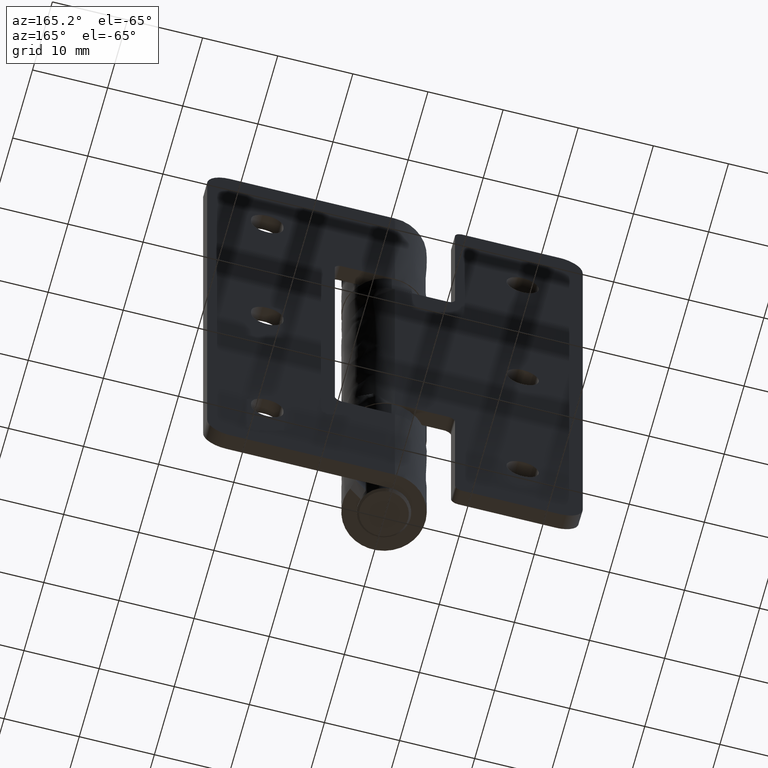
[diagram: clean part render]
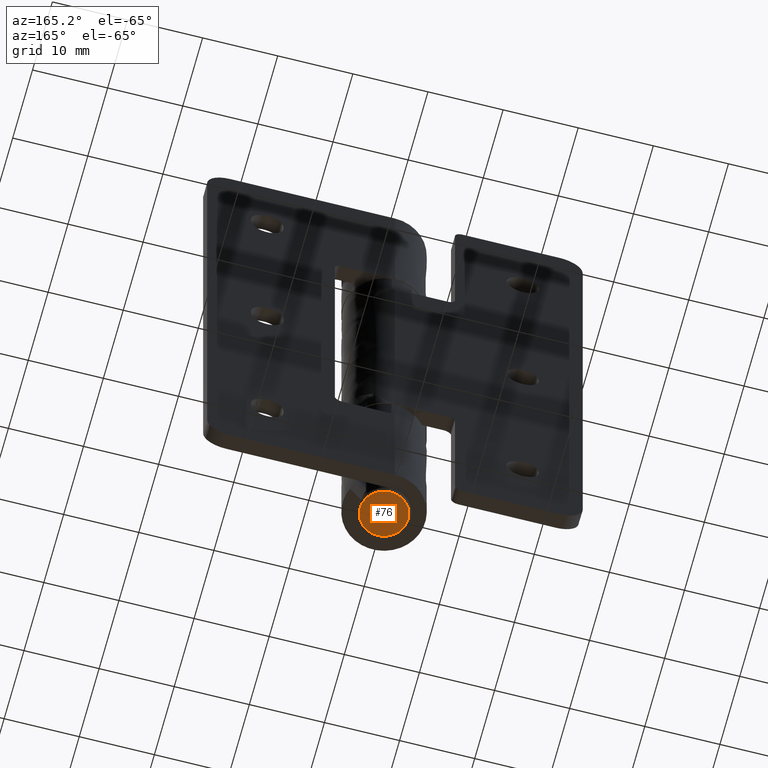
[diagram: same view with one face highlighted and labeled with its STEP entity id]
A machine part, auxiliary view. The second image highlights one B-rep face of the part: STEP entity #76.
In plain terms, the highlighted face is a freeform B-spline surface patch.
Its self-contained STEP definition (entity closure, byte-faithful):
#5=CARTESIAN_POINT('',(-3.519679987595564,-3.519601179310650,-0.500000000000000));
#6=CARTESIAN_POINT('',(3.519680159256930,-3.519601179310650,-0.500000000000000));
#7=CARTESIAN_POINT('',(-3.519679987595564,3.519601122090191,-0.500000000000000));
#8=CARTESIAN_POINT('',(3.519680159256930,3.519601122090191,-0.500000000000000));
#9=B_SPLINE_SURFACE_WITH_KNOTS('',1,1,((#5,#7),(#6,#8)),.UNSPECIFIED.,.F.,.F.,.U.,(2,2),(2,2),(0.0,7.039360146852493),(0.0,7.039202301400840),.UNSPECIFIED.);
#10=CARTESIAN_POINT('',(-0.195355326958475,-3.194031354981200,-0.499999999941536));
#11=VERTEX_POINT('',#10);
#12=CARTESIAN_POINT('',(3.199999999999995,0.0,-0.500000000000000));
#13=VERTEX_POINT('',#12);
#14=CARTESIAN_POINT('',(-0.195355326958475,-3.194031354981200,-0.499999999941537));
#15=CARTESIAN_POINT('',(-0.097768842781307,-3.200000000057504,-0.499999999942389));
#16=CARTESIAN_POINT('',(-3.466687E-012,-3.200000000056613,-0.499999999943284));
#17=CARTESIAN_POINT('',(3.199999999998317,-3.200000000027441,-0.499999999972502));
#18=CARTESIAN_POINT('',(3.199999999999995,0.0,-0.500000000000000));
#26=(BOUNDED_CURVE()B_SPLINE_CURVE(2,(#14,#15,#16,#17,#18),.UNSPECIFIED.,.F.,.U.)B_SPLINE_CURVE_WITH_KNOTS((3,2,3),(0.739332962218017,0.750000000000000,1.0),.UNSPECIFIED.)CURVE()GEOMETRIC_REPRESENTATION_ITEM()RATIONAL_B_SPLINE_CURVE((0.976072041621870,0.987502787875321,1.0,0.707106781186548,1.0))REPRESENTATION_ITEM(''));
#27=EDGE_CURVE('',#11,#13,#26,.T.);
#28=ORIENTED_EDGE('',*,*,#27,.F.);
#29=CARTESIAN_POINT('',(-3.200000000000005,0.0,-0.500000000000000));
#30=VERTEX_POINT('',#29);
#31=CARTESIAN_POINT('',(-3.200000000000005,0.0,-0.500000000000000));
#32=CARTESIAN_POINT('',(-3.200000000001789,-3.010259413708762,-0.499999999970754));
#33=CARTESIAN_POINT('',(-0.195355326958475,-3.194031354981200,-0.499999999941537));
#41=(BOUNDED_CURVE()B_SPLINE_CURVE(2,(#31,#32,#33),.UNSPECIFIED.,.F.,.U.)B_SPLINE_CURVE_WITH_KNOTS((3,3),(0.500000000000000,0.739332962218017),.UNSPECIFIED.)CURVE()GEOMETRIC_REPRESENTATION_ITEM()RATIONAL_B_SPLINE_CURVE((1.0,0.719603993311226,0.976072041621870))REPRESENTATION_ITEM(''));
#42=EDGE_CURVE('',#30,#11,#41,.T.);
#43=ORIENTED_EDGE('',*,*,#42,.F.);
#44=CARTESIAN_POINT('',(0.195355326958464,3.194031354981198,-0.499999999941551));
#45=VERTEX_POINT('',#44);
#46=CARTESIAN_POINT('',(0.195355326958464,3.194031354981198,-0.499999999941551));
#47=CARTESIAN_POINT('',(0.097768842781298,3.200000000057503,-0.499999999942389));
#48=CARTESIAN_POINT('',(3.457659E-012,3.200000000056611,-0.499999999943284));
#49=CARTESIAN_POINT('',(-3.199999999998327,3.200000000027441,-0.499999999972502));
#50=CARTESIAN_POINT('',(-3.200000000000005,0.0,-0.500000000000000));
#58=(BOUNDED_CURVE()B_SPLINE_CURVE(2,(#46,#47,#48,#49,#50),.UNSPECIFIED.,.F.,.U.)B_SPLINE_CURVE_WITH_KNOTS((3,2,3),(0.239332962218017,0.250000000000000,0.500000000000000),.UNSPECIFIED.)CURVE()GEOMETRIC_REPRESENTATION_ITEM()RATIONAL_B_SPLINE_CURVE((0.976072041621870,0.987502787875322,1.0,0.707106781186548,1.0))REPRESENTATION_ITEM(''));
#59=EDGE_CURVE('',#45,#30,#58,.T.);
#60=ORIENTED_EDGE('',*,*,#59,.F.);
#61=CARTESIAN_POINT('',(3.199999999999995,0.0,-0.500000000000000));
#62=CARTESIAN_POINT('',(3.200000000001780,3.010259413708763,-0.499999999970768));
#63=CARTESIAN_POINT('',(0.195355326958464,3.194031354981198,-0.499999999941551));
#71=(BOUNDED_CURVE()B_SPLINE_CURVE(2,(#61,#62,#63),.UNSPECIFIED.,.F.,.U.)B_SPLINE_CURVE_WITH_KNOTS((3,3),(0.0,0.239332962218017),.UNSPECIFIED.)CURVE()GEOMETRIC_REPRESENTATION_ITEM()RATIONAL_B_SPLINE_CURVE((1.0,0.719603993311226,0.976072041621870))REPRESENTATION_ITEM(''));
#72=EDGE_CURVE('',#13,#45,#71,.T.);
#73=ORIENTED_EDGE('',*,*,#72,.F.);
#74=EDGE_LOOP('',(#28,#43,#60,#73));
#75=FACE_OUTER_BOUND('',#74,.T.);
#76=ADVANCED_FACE('',(#75),#9,.F.);